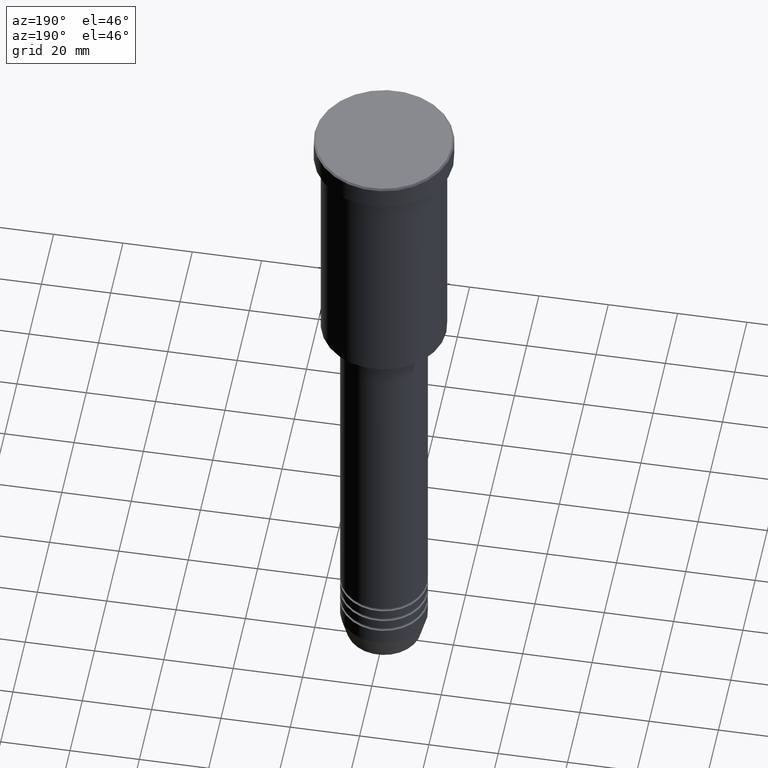
[diagram: clean part render]
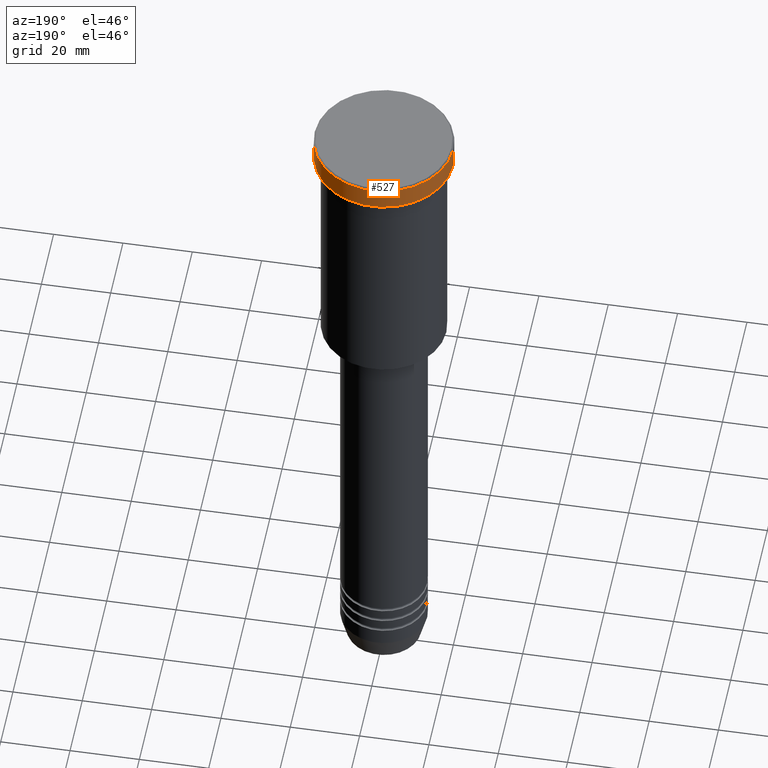
[diagram: same view with one face highlighted and labeled with its STEP entity id]
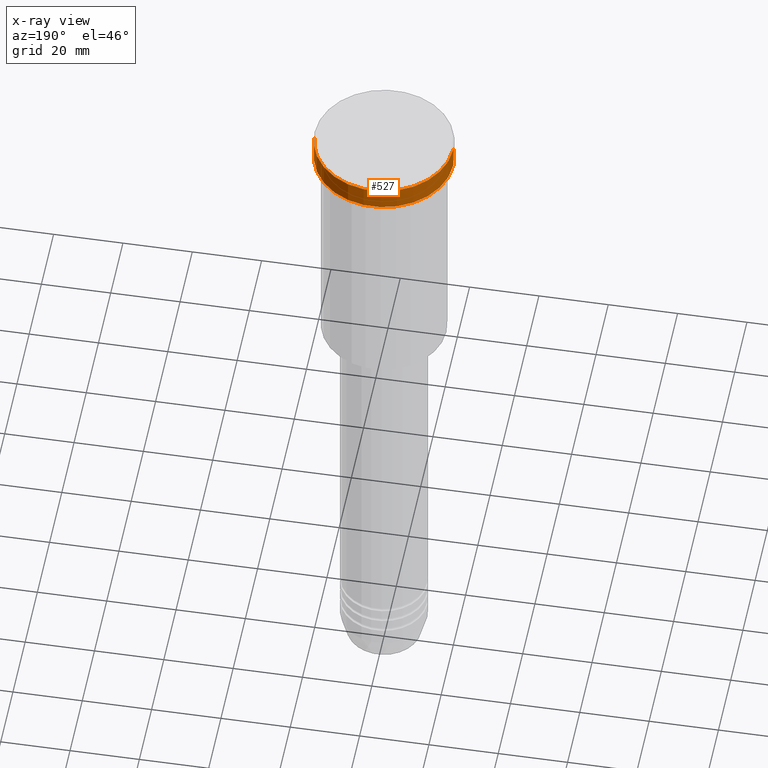
[diagram: x-ray of the same camera — body ghosted, the highlighted face saturated]
A machine part, auxiliary view. The second image highlights one B-rep face of the part: STEP entity #527.
The next image is the same camera in x-ray: the body ghosted, the highlighted face saturated — about 0% of this face is hidden behind the body in this view.
In plain terms, the highlighted cylindrical surface (partial cylindrical patch) has radius 20 mm, axis along (-0, -0, 1).
Its self-contained STEP definition (entity closure, byte-faithful):
#4 = ORIENTED_EDGE ( 'NONE', *, *, #806, .F. ) ;
#57 = CARTESIAN_POINT ( 'NONE',  ( 20.00000000000000000, 0.000000000000000000, 0.000000000000000000 ) ) ;
#95 = FACE_OUTER_BOUND ( 'NONE', #329, .T. ) ;
#126 = DIRECTION ( 'NONE',  ( 0.000000000000000000, 0.000000000000000000, -1.000000000000000000 ) ) ;
#144 = VERTEX_POINT ( 'NONE', #1033 ) ;
#190 = EDGE_CURVE ( 'NONE', #413, #144, #1080, .T. ) ;
#248 = DIRECTION ( 'NONE',  ( -0.000000000000000000, -0.000000000000000000, 1.000000000000000000 ) ) ;
#255 = DIRECTION ( 'NONE',  ( 1.000000000000000000, 0.000000000000000000, 0.000000000000000000 ) ) ;
#272 = AXIS2_PLACEMENT_3D ( 'NONE', #458, #1170, #255 ) ;
#274 = VECTOR ( 'NONE', #248, 1000.000000000000000 ) ;
#286 = CARTESIAN_POINT ( 'NONE',  ( 0.000000000000000000, 0.000000000000000000, -6.999999999999995559 ) ) ;
#309 = VECTOR ( 'NONE', #495, 1000.000000000000000 ) ;
#313 = CARTESIAN_POINT ( 'NONE',  ( -20.00000000000000000, 2.449293598294706513E-15, 0.000000000000000000 ) ) ;
#329 = EDGE_LOOP ( 'NONE', ( #342, #995, #894, #4 ) ) ;
#342 = ORIENTED_EDGE ( 'NONE', *, *, #1034, .T. ) ;
#387 = AXIS2_PLACEMENT_3D ( 'NONE', #926, #126, #949 ) ;
#413 = VERTEX_POINT ( 'NONE', #462 ) ;
#428 = LINE ( 'NONE', #313, #274 ) ;
#458 = CARTESIAN_POINT ( 'NONE',  ( 0.000000000000000000, 0.000000000000000000, 0.000000000000000000 ) ) ;
#462 = CARTESIAN_POINT ( 'NONE',  ( -20.00000000000000000, 2.449293598294706513E-15, -0.4999999999999970024 ) ) ;
#495 = DIRECTION ( 'NONE',  ( -0.000000000000000000, -0.000000000000000000, 1.000000000000000000 ) ) ;
#527 = ADVANCED_FACE ( 'NONE', ( #95 ), #1091, .T. ) ;
#621 = VERTEX_POINT ( 'NONE', #652 ) ;
#652 = CARTESIAN_POINT ( 'NONE',  ( 20.00000000000000000, 0.000000000000000000, -6.999999999999995559 ) ) ;
#657 = DIRECTION ( 'NONE',  ( -0.000000000000000000, -0.000000000000000000, 1.000000000000000000 ) ) ;
#687 = LINE ( 'NONE', #57, #309 ) ;
#738 = DIRECTION ( 'NONE',  ( 1.000000000000000000, 0.000000000000000000, 0.000000000000000000 ) ) ;
#748 = VERTEX_POINT ( 'NONE', #1067 ) ;
#806 = EDGE_CURVE ( 'NONE', #621, #144, #687, .T. ) ;
#829 = EDGE_CURVE ( 'NONE', #748, #413, #428, .T. ) ;
#894 = ORIENTED_EDGE ( 'NONE', *, *, #190, .T. ) ;
#926 = CARTESIAN_POINT ( 'NONE',  ( 0.000000000000000000, 0.000000000000000000, -0.4999999999999970024 ) ) ;
#949 = DIRECTION ( 'NONE',  ( 1.000000000000000000, 0.000000000000000000, 0.000000000000000000 ) ) ;
#995 = ORIENTED_EDGE ( 'NONE', *, *, #829, .T. ) ;
#1018 = CIRCLE ( 'NONE', #1172, 20.00000000000000000 ) ;
#1033 = CARTESIAN_POINT ( 'NONE',  ( 20.00000000000000000, 0.000000000000000000, -0.4999999999999970024 ) ) ;
#1034 = EDGE_CURVE ( 'NONE', #621, #748, #1018, .T. ) ;
#1067 = CARTESIAN_POINT ( 'NONE',  ( -20.00000000000000000, 2.449293598294706513E-15, -6.999999999999995559 ) ) ;
#1080 = CIRCLE ( 'NONE', #387, 20.00000000000000000 ) ;
#1091 = CYLINDRICAL_SURFACE ( 'NONE', #272, 20.00000000000000000 ) ;
#1170 = DIRECTION ( 'NONE',  ( -0.000000000000000000, -0.000000000000000000, 1.000000000000000000 ) ) ;
#1172 = AXIS2_PLACEMENT_3D ( 'NONE', #286, #657, #738 ) ;